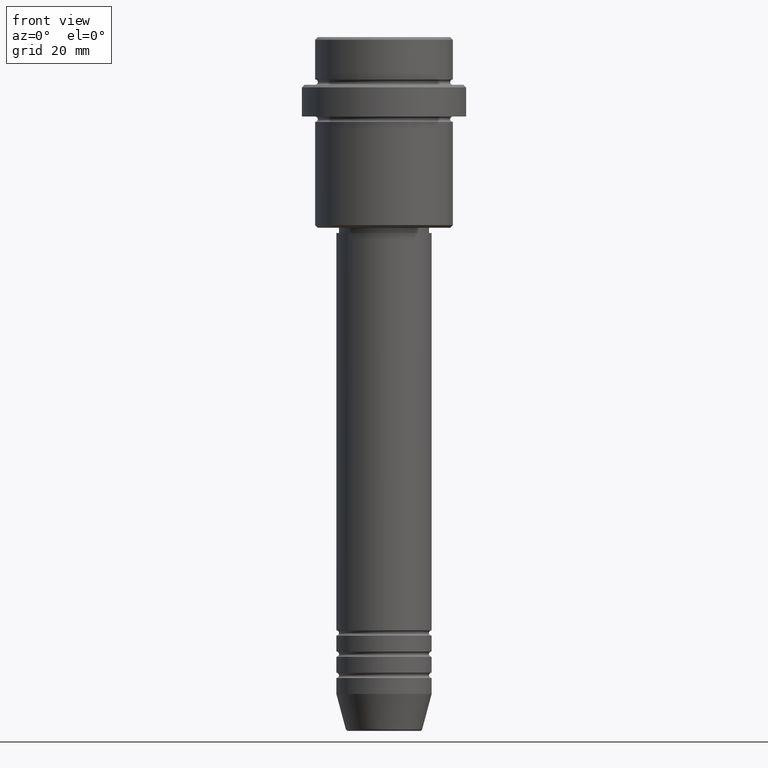
[diagram: clean part render]
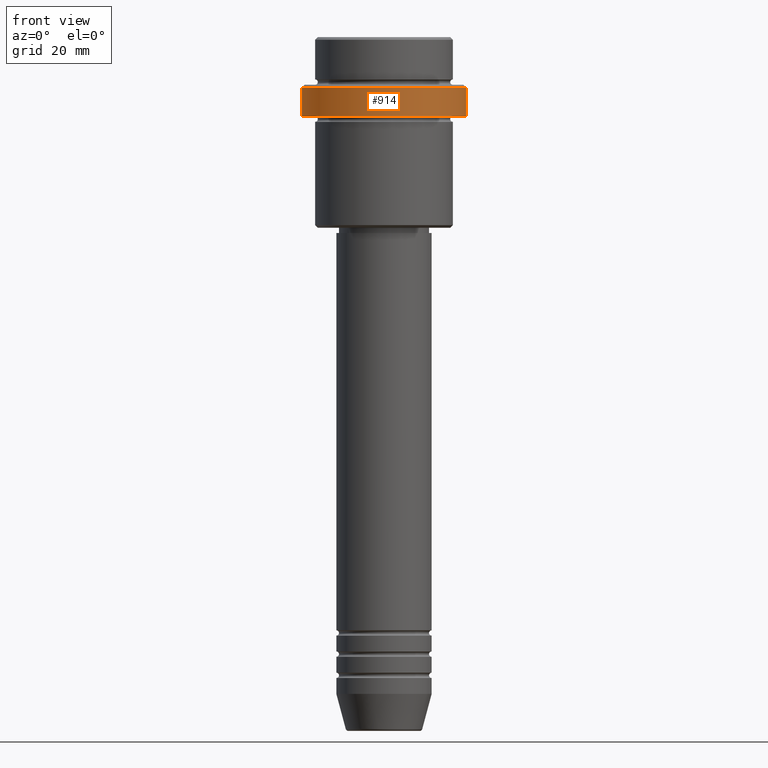
[diagram: same view with one face highlighted and labeled with its STEP entity id]
A machine part, front view. The second image highlights one B-rep face of the part: STEP entity #914.
In plain terms, the highlighted cylindrical surface (partial cylindrical patch) has radius 15.5 mm, axis along (-0, -0, 1).
Its self-contained STEP definition (entity closure, byte-faithful):
#44 = CARTESIAN_POINT ( 'NONE',  ( 0.000000000000000000, 0.000000000000000000, -15.00000000000000178 ) ) ;
#62 = AXIS2_PLACEMENT_3D ( 'NONE', #896, #473, #355 ) ;
#73 = DIRECTION ( 'NONE',  ( 0.000000000000000000, 0.000000000000000000, -1.000000000000000000 ) ) ;
#146 = CIRCLE ( 'NONE', #989, 15.50000000000000000 ) ;
#154 = CARTESIAN_POINT ( 'NONE',  ( -15.50000000000000000, 1.898202538678397557E-15, -15.00000000000000178 ) ) ;
#214 = CARTESIAN_POINT ( 'NONE',  ( 15.50000000000000000, 0.000000000000000000, 0.000000000000000000 ) ) ;
#227 = DIRECTION ( 'NONE',  ( -0.000000000000000000, -0.000000000000000000, 1.000000000000000000 ) ) ;
#234 = EDGE_CURVE ( 'NONE', #1154, #763, #856, .T. ) ;
#269 = EDGE_LOOP ( 'NONE', ( #1360, #479, #417, #1088 ) ) ;
#355 = DIRECTION ( 'NONE',  ( 1.000000000000000000, 0.000000000000000000, 0.000000000000000000 ) ) ;
#417 = ORIENTED_EDGE ( 'NONE', *, *, #422, .T. ) ;
#418 = CARTESIAN_POINT ( 'NONE',  ( -15.50000000000000000, 1.898202538678397557E-15, -9.499999999999971578 ) ) ;
#422 = EDGE_CURVE ( 'NONE', #425, #1283, #650, .T. ) ;
#425 = VERTEX_POINT ( 'NONE', #562 ) ;
#473 = DIRECTION ( 'NONE',  ( -0.000000000000000000, -0.000000000000000000, 1.000000000000000000 ) ) ;
#479 = ORIENTED_EDGE ( 'NONE', *, *, #576, .T. ) ;
#487 = CARTESIAN_POINT ( 'NONE',  ( 0.000000000000000000, 0.000000000000000000, -9.499999999999971578 ) ) ;
#497 = VECTOR ( 'NONE', #664, 1000.000000000000000 ) ;
#508 = CARTESIAN_POINT ( 'NONE',  ( -15.50000000000000000, 1.898202538678397557E-15, 0.000000000000000000 ) ) ;
#562 = CARTESIAN_POINT ( 'NONE',  ( 15.50000000000000000, 0.000000000000000000, -15.00000000000000178 ) ) ;
#571 = CIRCLE ( 'NONE', #1211, 15.50000000000000000 ) ;
#576 = EDGE_CURVE ( 'NONE', #1154, #425, #571, .T. ) ;
#650 = LINE ( 'NONE', #214, #497 ) ;
#664 = DIRECTION ( 'NONE',  ( -0.000000000000000000, -0.000000000000000000, 1.000000000000000000 ) ) ;
#677 = DIRECTION ( 'NONE',  ( 1.000000000000000000, 0.000000000000000000, 0.000000000000000000 ) ) ;
#763 = VERTEX_POINT ( 'NONE', #418 ) ;
#826 = DIRECTION ( 'NONE',  ( -0.000000000000000000, -0.000000000000000000, 1.000000000000000000 ) ) ;
#856 = LINE ( 'NONE', #508, #1049 ) ;
#896 = CARTESIAN_POINT ( 'NONE',  ( 0.000000000000000000, 0.000000000000000000, 0.000000000000000000 ) ) ;
#914 = ADVANCED_FACE ( 'NONE', ( #1111 ), #1236, .T. ) ;
#989 = AXIS2_PLACEMENT_3D ( 'NONE', #487, #73, #1375 ) ;
#1008 = EDGE_CURVE ( 'NONE', #1283, #763, #146, .T. ) ;
#1049 = VECTOR ( 'NONE', #826, 1000.000000000000000 ) ;
#1088 = ORIENTED_EDGE ( 'NONE', *, *, #1008, .T. ) ;
#1111 = FACE_OUTER_BOUND ( 'NONE', #269, .T. ) ;
#1154 = VERTEX_POINT ( 'NONE', #154 ) ;
#1211 = AXIS2_PLACEMENT_3D ( 'NONE', #44, #227, #677 ) ;
#1236 = CYLINDRICAL_SURFACE ( 'NONE', #62, 15.50000000000000000 ) ;
#1283 = VERTEX_POINT ( 'NONE', #1391 ) ;
#1360 = ORIENTED_EDGE ( 'NONE', *, *, #234, .F. ) ;
#1375 = DIRECTION ( 'NONE',  ( 1.000000000000000000, 0.000000000000000000, 0.000000000000000000 ) ) ;
#1391 = CARTESIAN_POINT ( 'NONE',  ( 15.50000000000000000, 0.000000000000000000, -9.499999999999971578 ) ) ;